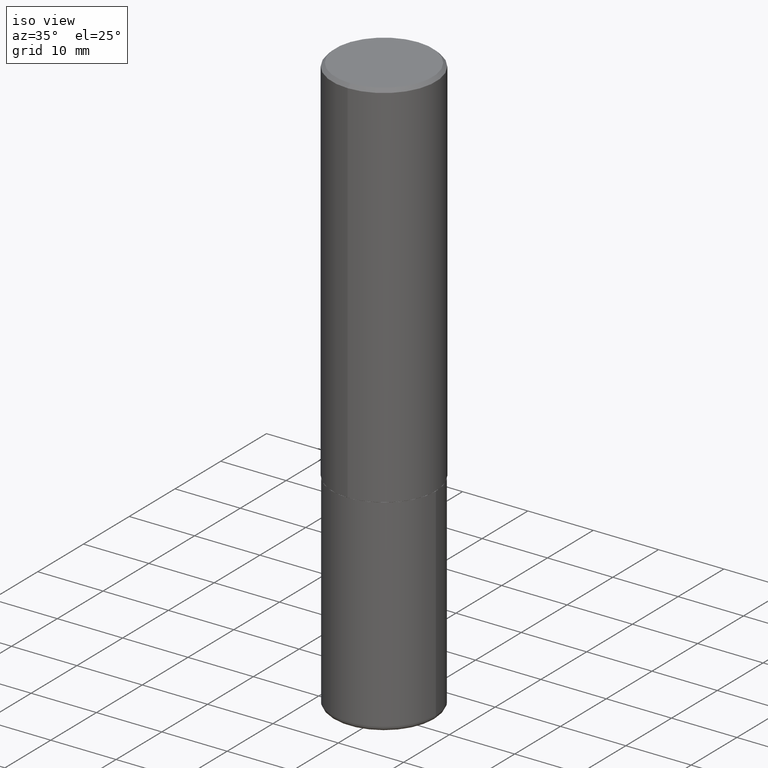
[diagram: clean part render]
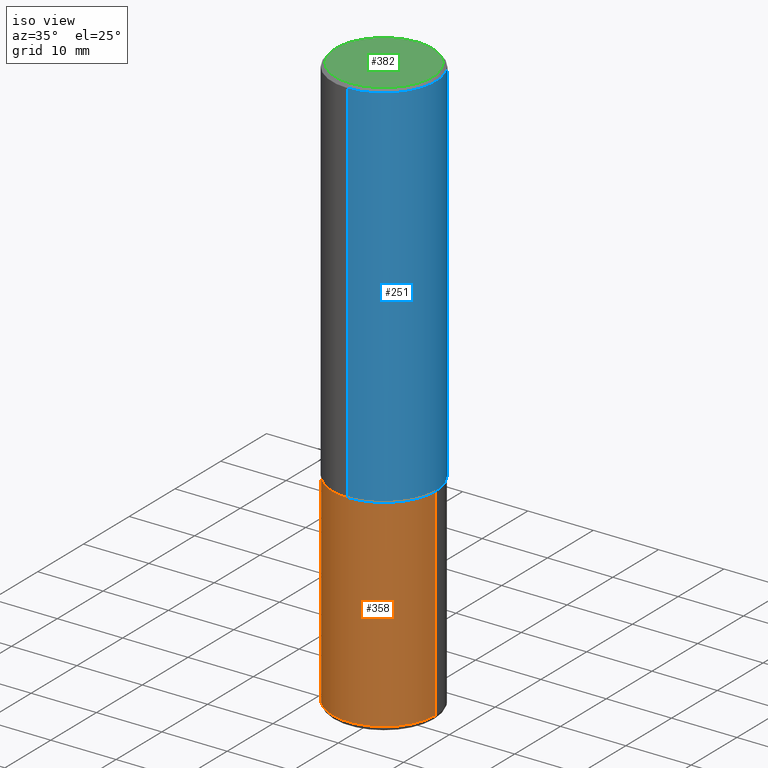
[diagram: same view with three faces highlighted in distinct colors, each labeled with its STEP entity id]
A machine part, iso view with three faces highlighted in distinct colors.
Their STEP definitions:

[orange] entity #358 — the highlighted cylindrical surface (partial cylindrical patch) has radius 7.9375 mm, axis along (-0, 0, 1).
#10 = CARTESIAN_POINT ( 'NONE',  ( 0.3125000000000000000, -1.003800884917403364E-14, -2.249999999999999556 ) ) ;
#18 = DIRECTION ( 'NONE',  ( -2.445468806185136877E-29, 3.491481338843145188E-15, 1.000000000000000000 ) ) ;
#32 = ORIENTED_EDGE ( 'NONE', *, *, #373, .F. ) ;
#40 = LINE ( 'NONE', #371, #242 ) ;
#73 = CARTESIAN_POINT ( 'NONE',  ( 5.502304813916556222E-29, -7.855833012397075293E-15, -2.249999999999999556 ) ) ;
#74 = VECTOR ( 'NONE', #18, 39.37007874015748143 ) ;
#85 = DIRECTION ( 'NONE',  ( -2.445468806185136877E-29, 3.491481338843145188E-15, 1.000000000000000000 ) ) ;
#86 = ORIENTED_EDGE ( 'NONE', *, *, #418, .T. ) ;
#94 = EDGE_CURVE ( 'NONE', #119, #410, #190, .T. ) ;
#109 = DIRECTION ( 'NONE',  ( -2.445468806185136597E-29, 3.491481338843145583E-15, 1.000000000000000000 ) ) ;
#118 = CARTESIAN_POINT ( 'NONE',  ( 0.3125000000000000000, -2.182175836776958347E-15, 1.523805242436230075E-29 ) ) ;
#119 = VERTEX_POINT ( 'NONE', #229 ) ;
#123 = AXIS2_PLACEMENT_3D ( 'NONE', #388, #109, #228 ) ;
#125 = LINE ( 'NONE', #118, #74 ) ;
#129 = FACE_OUTER_BOUND ( 'NONE', #370, .T. ) ;
#140 = CIRCLE ( 'NONE', #376, 0.3125000000000000000 ) ;
#142 = DIRECTION ( 'NONE',  ( -2.445468806185136597E-29, 3.491481338843145583E-15, 1.000000000000000000 ) ) ;
#144 = EDGE_CURVE ( 'NONE', #119, #274, #40, .T. ) ;
#160 = AXIS2_PLACEMENT_3D ( 'NONE', #201, #142, #334 ) ;
#186 = CARTESIAN_POINT ( 'NONE',  ( -0.3125000000000000000, -7.765190579841083341E-15, -2.249999999999999556 ) ) ;
#190 = CIRCLE ( 'NONE', #160, 0.3124999999999999445 ) ;
#201 = CARTESIAN_POINT ( 'NONE',  ( 8.485776757462424574E-29, -1.211544024578571439E-14, -3.469999999999999751 ) ) ;
#209 = DIRECTION ( 'NONE',  ( 1.000000000000000000, -6.982962677686265133E-15, 0.000000000000000000 ) ) ;
#228 = DIRECTION ( 'NONE',  ( 1.000000000000000000, -6.982962677686266711E-15, 4.876176775795936353E-29 ) ) ;
#229 = CARTESIAN_POINT ( 'NONE',  ( -0.3125000000000000555, -9.894994196535401314E-15, -3.469999999999999751 ) ) ;
#242 = VECTOR ( 'NONE', #85, 39.37007874015748143 ) ;
#274 = VERTEX_POINT ( 'NONE', #186 ) ;
#288 = ORIENTED_EDGE ( 'NONE', *, *, #144, .F. ) ;
#300 = CYLINDRICAL_SURFACE ( 'NONE', #123, 0.3125000000000000000 ) ;
#319 = ORIENTED_EDGE ( 'NONE', *, *, #94, .T. ) ;
#334 = DIRECTION ( 'NONE',  ( 1.000000000000000000, -6.982962677686264344E-15, 0.000000000000000000 ) ) ;
#341 = VERTEX_POINT ( 'NONE', #10 ) ;
#358 = ADVANCED_FACE ( 'NONE', ( #129 ), #300, .T. ) ;
#370 = EDGE_LOOP ( 'NONE', ( #288, #319, #86, #32 ) ) ;
#371 = CARTESIAN_POINT ( 'NONE',  ( -0.3125000000000000000, 2.220446049250313081E-15, -1.537167215704658232E-29 ) ) ;
#373 = EDGE_CURVE ( 'NONE', #274, #341, #140, .T. ) ;
#376 = AXIS2_PLACEMENT_3D ( 'NONE', #73, #413, #209 ) ;
#388 = CARTESIAN_POINT ( 'NONE',  ( 0.000000000000000000, 0.000000000000000000, 0.000000000000000000 ) ) ;
#409 = CARTESIAN_POINT ( 'NONE',  ( 0.3125000000000000555, -1.429761608256267432E-14, -3.469999999999999751 ) ) ;
#410 = VERTEX_POINT ( 'NONE', #409 ) ;
#413 = DIRECTION ( 'NONE',  ( -2.445468806185136597E-29, 3.491481338843145583E-15, 1.000000000000000000 ) ) ;
#418 = EDGE_CURVE ( 'NONE', #410, #341, #125, .T. ) ;

[blue] entity #251 — the highlighted cylindrical surface (partial cylindrical patch) has radius 7.9375 mm, axis along (-0, 0, 1).
#3 = DIRECTION ( 'NONE',  ( -2.445086907927291948E-29, 3.492028238884678069E-15, 1.000000000000000000 ) ) ;
#12 = ORIENTED_EDGE ( 'NONE', *, *, #45, .T. ) ;
#21 = CYLINDRICAL_SURFACE ( 'NONE', #249, 0.3125000000000000555 ) ;
#36 = DIRECTION ( 'NONE',  ( -6.982962677686265922E-15, -1.000000000000000000, 3.496765431890253764E-15 ) ) ;
#45 = EDGE_CURVE ( 'NONE', #64, #58, #108, .T. ) ;
#58 = VERTEX_POINT ( 'NONE', #75 ) ;
#59 = DIRECTION ( 'NONE',  ( -6.982962677686266711E-15, -1.000000000000000000, 3.492028238884678463E-15 ) ) ;
#64 = VERTEX_POINT ( 'NONE', #79 ) ;
#66 = CIRCLE ( 'NONE', #295, 0.3125000000000002776 ) ;
#75 = CARTESIAN_POINT ( 'NONE',  ( 2.182175836776957558E-15, 0.3124999999999998335, -0.02000000000000116268 ) ) ;
#79 = CARTESIAN_POINT ( 'NONE',  ( 2.220446049250341480E-15, 0.3124999999999924505, -2.249000000000000554 ) ) ;
#80 = DIRECTION ( 'NONE',  ( -6.982962677686265133E-15, -1.000000000000000000, 3.496765431890258103E-15 ) ) ;
#108 = LINE ( 'NONE', #227, #139 ) ;
#112 = CARTESIAN_POINT ( 'NONE',  ( 4.890173815854600958E-31, -6.984056477769379656E-17, -0.02000000000000006981 ) ) ;
#117 = ORIENTED_EDGE ( 'NONE', *, *, #135, .F. ) ;
#135 = EDGE_CURVE ( 'NONE', #220, #58, #213, .T. ) ;
#139 = VECTOR ( 'NONE', #360, 39.37007874015748143 ) ;
#152 = EDGE_CURVE ( 'NONE', #238, #220, #205, .T. ) ;
#168 = CARTESIAN_POINT ( 'NONE',  ( -2.182175836776958741E-15, -0.3125000000000000555, 1.091258824651462242E-15 ) ) ;
#170 = EDGE_CURVE ( 'NONE', #238, #64, #66, .T. ) ;
#205 = LINE ( 'NONE', #168, #269 ) ;
#208 = CARTESIAN_POINT ( 'NONE',  ( 5.499000455928477404E-29, -7.853571509251639273E-15, -2.248999999999999222 ) ) ;
#211 = ORIENTED_EDGE ( 'NONE', *, *, #152, .F. ) ;
#213 = CIRCLE ( 'NONE', #375, 0.3124999999999998890 ) ;
#220 = VERTEX_POINT ( 'NONE', #344 ) ;
#227 = CARTESIAN_POINT ( 'NONE',  ( 2.220446049250313081E-15, 0.3125000000000000555, -1.091258824651462242E-15 ) ) ;
#236 = DIRECTION ( 'NONE',  ( -2.445086907927291668E-29, 3.492028238884678463E-15, 1.000000000000000000 ) ) ;
#238 = VERTEX_POINT ( 'NONE', #278 ) ;
#239 = EDGE_LOOP ( 'NONE', ( #387, #12, #117, #211 ) ) ;
#249 = AXIS2_PLACEMENT_3D ( 'NONE', #383, #351, #59 ) ;
#251 = ADVANCED_FACE ( 'NONE', ( #309 ), #21, .T. ) ;
#260 = DIRECTION ( 'NONE',  ( -2.445086907927291668E-29, 3.492028238884678463E-15, 1.000000000000000000 ) ) ;
#269 = VECTOR ( 'NONE', #3, 39.37007874015748143 ) ;
#278 = CARTESIAN_POINT ( 'NONE',  ( -2.182175836776905099E-15, -0.3125000000000081601, -2.248999999999998334 ) ) ;
#295 = AXIS2_PLACEMENT_3D ( 'NONE', #208, #260, #36 ) ;
#309 = FACE_OUTER_BOUND ( 'NONE', #239, .T. ) ;
#344 = CARTESIAN_POINT ( 'NONE',  ( -2.143905624303602036E-15, -0.3124999999999999445, -0.01999999999999897693 ) ) ;
#351 = DIRECTION ( 'NONE',  ( -2.445086907927291668E-29, 3.492028238884678463E-15, 1.000000000000000000 ) ) ;
#360 = DIRECTION ( 'NONE',  ( -2.445086907927291948E-29, 3.492028238884678069E-15, 1.000000000000000000 ) ) ;
#375 = AXIS2_PLACEMENT_3D ( 'NONE', #112, #236, #80 ) ;
#383 = CARTESIAN_POINT ( 'NONE',  ( 0.000000000000000000, 0.000000000000000000, 0.000000000000000000 ) ) ;
#387 = ORIENTED_EDGE ( 'NONE', *, *, #170, .T. ) ;

[green] entity #382 — the highlighted planar face has unit normal (0, -0, -1).
#19 = VERTEX_POINT ( 'NONE', #301 ) ;
#22 = CARTESIAN_POINT ( 'NONE',  ( 2.112346210000094654E-15, 0.2924999999999998157, -9.743046542205149289E-16 ) ) ;
#25 = CIRCLE ( 'NONE', #83, 0.2924999999999998157 ) ;
#35 = ORIENTED_EDGE ( 'NONE', *, *, #367, .T. ) ;
#47 = PLANE ( 'NONE',  #361 ) ;
#76 = DIRECTION ( 'NONE',  ( -2.445086907927291668E-29, 3.492028238884678463E-15, 1.000000000000000000 ) ) ;
#81 = CARTESIAN_POINT ( 'NONE',  ( -1.151968603680178869E-45, 1.645220413768359429E-31, 4.711360565325289381E-17 ) ) ;
#83 = AXIS2_PLACEMENT_3D ( 'NONE', #329, #76, #225 ) ;
#113 = EDGE_CURVE ( 'NONE', #19, #252, #25, .T. ) ;
#150 = DIRECTION ( 'NONE',  ( 2.445086907927291668E-29, -3.492028238884678069E-15, -1.000000000000000000 ) ) ;
#154 = CARTESIAN_POINT ( 'NONE',  ( 2.042516583223231356E-15, 0.2924999999999998157, -9.978614570471413234E-16 ) ) ;
#225 = DIRECTION ( 'NONE',  ( -6.982962677686265133E-15, -1.000000000000000000, 3.492028238884678858E-15 ) ) ;
#252 = VERTEX_POINT ( 'NONE', #22 ) ;
#268 = DIRECTION ( 'NONE',  ( -2.445086907927291668E-29, 3.492028238884678463E-15, 1.000000000000000000 ) ) ;
#273 = EDGE_LOOP ( 'NONE', ( #35, #408 ) ) ;
#287 = DIRECTION ( 'NONE',  ( -6.982962677686265133E-15, -1.000000000000000000, 3.492028238884678858E-15 ) ) ;
#301 = CARTESIAN_POINT ( 'NONE',  ( -2.075300644325886704E-15, -0.2924999999999998157, 1.068531865527020507E-15 ) ) ;
#317 = CIRCLE ( 'NONE', #404, 0.2924999999999998157 ) ;
#329 = CARTESIAN_POINT ( 'NONE',  ( -1.151968603680178869E-45, 1.645220413768359429E-31, 4.711360565325289381E-17 ) ) ;
#340 = FACE_OUTER_BOUND ( 'NONE', #273, .T. ) ;
#361 = AXIS2_PLACEMENT_3D ( 'NONE', #154, #150, #406 ) ;
#367 = EDGE_CURVE ( 'NONE', #252, #19, #317, .T. ) ;
#382 = ADVANCED_FACE ( 'NONE', ( #340 ), #47, .F. ) ;
#404 = AXIS2_PLACEMENT_3D ( 'NONE', #81, #268, #287 ) ;
#406 = DIRECTION ( 'NONE',  ( 6.982962677686265922E-15, 1.000000000000000000, -3.492028238884678069E-15 ) ) ;
#408 = ORIENTED_EDGE ( 'NONE', *, *, #113, .T. ) ;